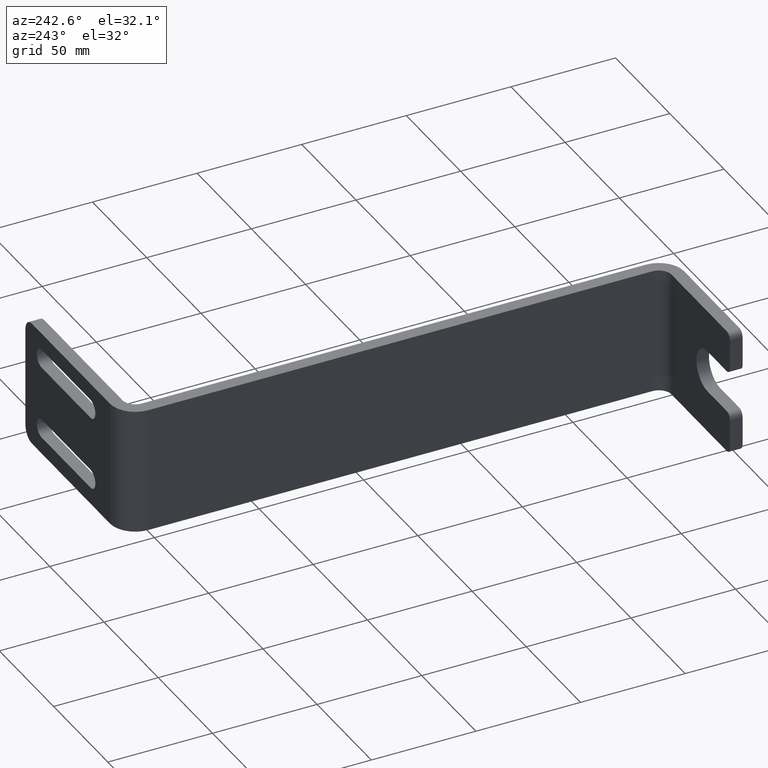
[diagram: clean part render]
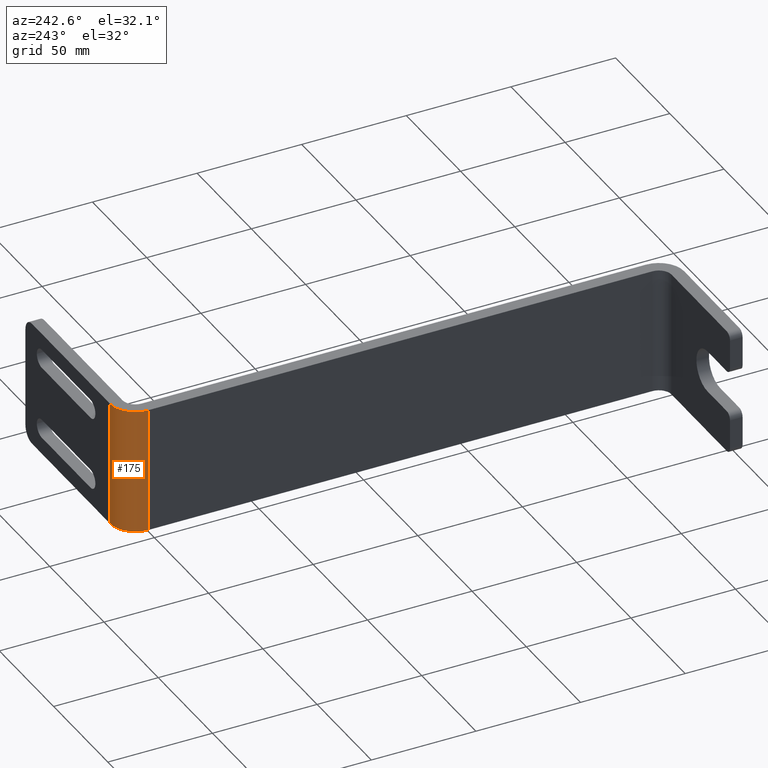
[diagram: same view with one face highlighted and labeled with its STEP entity id]
A machine part, auxiliary view. The second image highlights one B-rep face of the part: STEP entity #175.
In plain terms, the highlighted cylindrical surface (edge-blend (fillet) strip) has radius 12 mm, axis along (-0, 0, -1).
Its self-contained STEP definition (entity closure, byte-faithful):
#175=ADVANCED_FACE('EdgeFillet.3',(#471),#472,.T.);
#285=EDGE_CURVE('EdgeFillet.3',#638,#625,#641,.T.);
#303=EDGE_CURVE('EdgeFillet.3',#663,#625,#664,.F.);
#305=EDGE_CURVE('EdgeFillet.3',#638,#666,#667,.T.);
#307=EDGE_CURVE('EdgeFillet.3',#666,#663,#669,.T.);
#471=FACE_OUTER_BOUND('',#855,.T.);
#472=CYLINDRICAL_SURFACE('',#856,12.0);
#625=VERTEX_POINT('',#1042);
#638=VERTEX_POINT('',#1061);
#641=LINE('',#1066,#1067);
#663=VERTEX_POINT('',#1102);
#664=CIRCLE('',#1103,12.0);
#666=VERTEX_POINT('',#1106);
#667=CIRCLE('',#1107,12.0);
#669=LINE('',#1110,#1111);
#855=EDGE_LOOP('',(#1443,#1444,#1445,#1446));
#856=AXIS2_PLACEMENT_3D('',#1447,#1448,#1449);
#1042=CARTESIAN_POINT('',(12.0000000000005,265.0,60.0));
#1061=CARTESIAN_POINT('',(12.0000000000005,265.0,0.0));
#1066=CARTESIAN_POINT('',(12.0,265.0,30.0));
#1067=VECTOR('',#1767,1.0);
#1102=CARTESIAN_POINT('',(0.0,253.0,60.0));
#1103=AXIS2_PLACEMENT_3D('',#1784,#1785,#1786);
#1106=CARTESIAN_POINT('',(0.0,253.0,0.0));
#1107=AXIS2_PLACEMENT_3D('',#1787,#1788,#1789);
#1110=CARTESIAN_POINT('',(0.0,253.0,30.0));
#1111=VECTOR('',#1790,1.0);
#1443=ORIENTED_EDGE('',*,*,#303,.T.);
#1444=ORIENTED_EDGE('',*,*,#285,.F.);
#1445=ORIENTED_EDGE('',*,*,#305,.T.);
#1446=ORIENTED_EDGE('',*,*,#307,.T.);
#1447=CARTESIAN_POINT('',(12.0,253.0,30.0));
#1448=DIRECTION('',(-0.0,0.0,-1.0));
#1449=DIRECTION('',(-1.0,0.0,0.0));
#1767=DIRECTION('',(0.0,0.0,1.0));
#1784=CARTESIAN_POINT('',(12.0,253.0,60.0));
#1785=DIRECTION('',(0.0,0.0,1.0));
#1786=DIRECTION('',(1.0,0.0,0.0));
#1787=CARTESIAN_POINT('',(12.0,253.0,0.0));
#1788=DIRECTION('',(0.0,0.0,1.0));
#1789=DIRECTION('',(1.0,0.0,0.0));
#1790=DIRECTION('',(0.0,0.0,1.0));